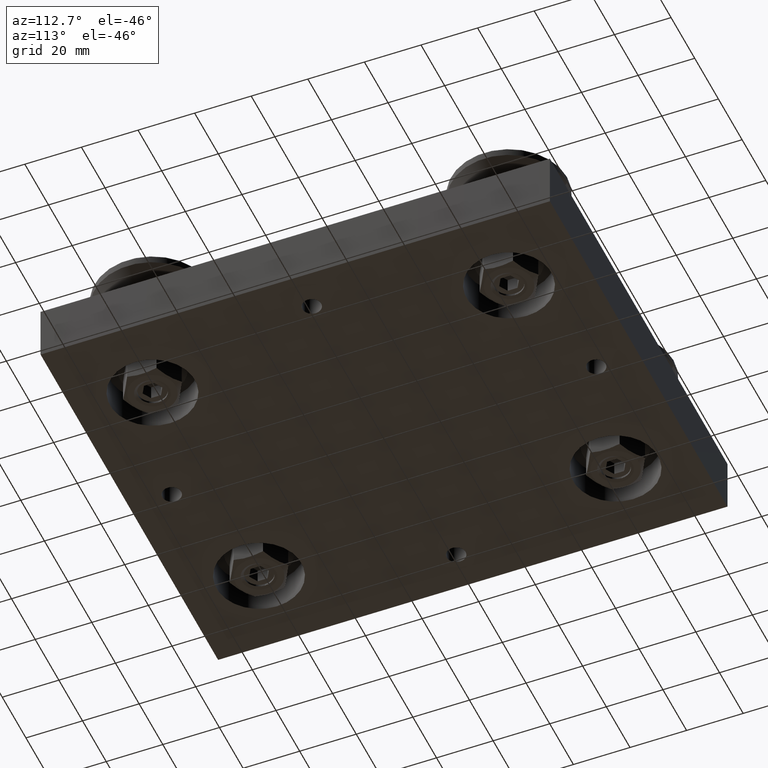
[diagram: clean part render]
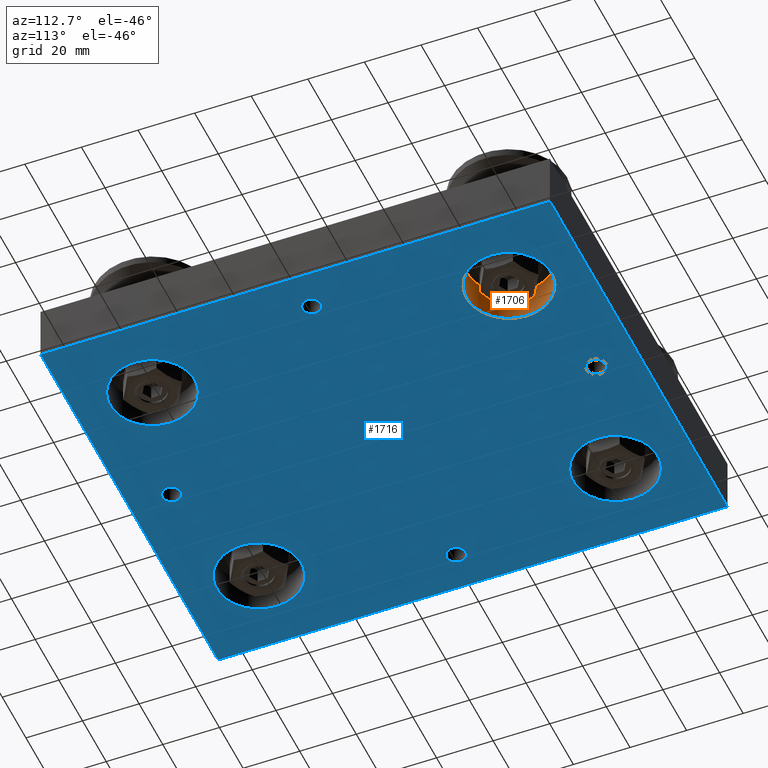
[diagram: same view with the hole feature highlighted: cylindrical wall and planar end face, labeled with their STEP entity ids]
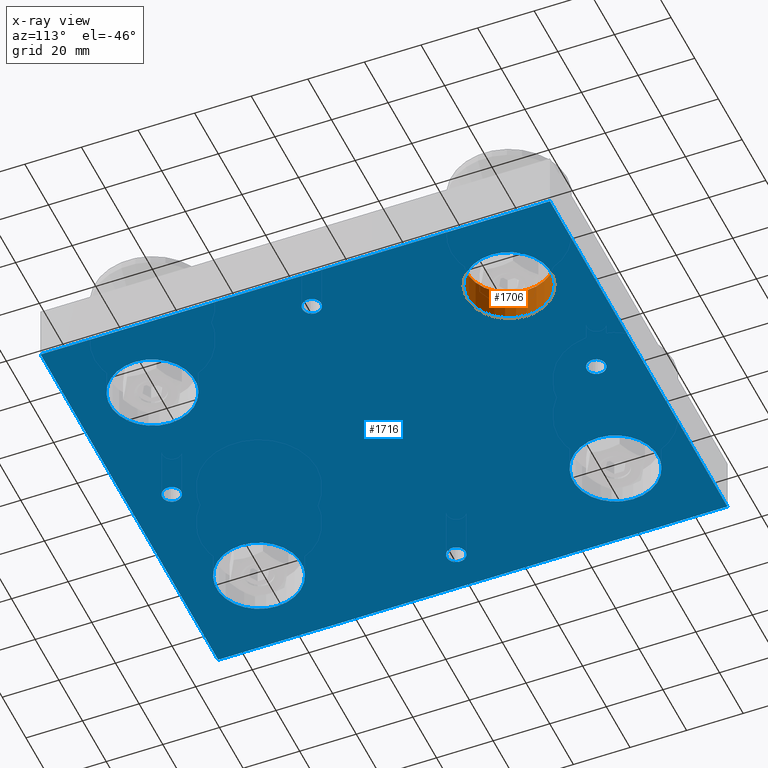
[diagram: x-ray of the same camera — body ghosted, the hole faces saturated]
A machine part, auxiliary view. The highlighted faces form one hole feature of diameter 30 mm: the cylindrical wall (entity #1706, orange) and its adjacent planar end face (entity #1716, blue) — they share a circular edge in the B-rep.
The next image is the same camera in x-ray (body ghosted, the hole faces saturated) — the bore reads through the body.
Wall:
#286=FACE_OUTER_BOUND('',#393,.T.);
#393=EDGE_LOOP('',(#1264,#1265,#1266,#1267));
#528=LINE('',#2790,#657);
#657=VECTOR('',#2267,15.);
#794=CIRCLE('',#2018,15.);
#796=CIRCLE('',#2021,15.);
#875=VERTEX_POINT('',#2783);
#877=VERTEX_POINT('',#2788);
#1028=EDGE_CURVE('',#875,#875,#794,.T.);
#1030=EDGE_CURVE('',#877,#877,#796,.T.);
#1031=EDGE_CURVE('',#877,#875,#528,.T.);
#1264=ORIENTED_EDGE('',*,*,#1030,.F.);
#1265=ORIENTED_EDGE('',*,*,#1031,.T.);
#1266=ORIENTED_EDGE('',*,*,#1028,.F.);
#1267=ORIENTED_EDGE('',*,*,#1031,.F.);
#1678=CYLINDRICAL_SURFACE('',#2020,15.);
#1706=ADVANCED_FACE('',(#286),#1678,.F.);
#2018=AXIS2_PLACEMENT_3D('',#2784,#2259,#2260);
#2020=AXIS2_PLACEMENT_3D('',#2787,#2263,#2264);
#2021=AXIS2_PLACEMENT_3D('',#2789,#2265,#2266);
#2259=DIRECTION('center_axis',(0.,0.,1.));
#2260=DIRECTION('ref_axis',(1.,0.,0.));
#2263=DIRECTION('center_axis',(0.,0.,1.));
#2264=DIRECTION('ref_axis',(1.,0.,0.));
#2265=DIRECTION('center_axis',(0.,0.,-1.));
#2266=DIRECTION('ref_axis',(1.,0.,0.));
#2267=DIRECTION('',(0.,0.,-1.));
#2783=CARTESIAN_POINT('',(-60.,63.,-2.));
#2784=CARTESIAN_POINT('Origin',(-45.,63.,-2.));
#2787=CARTESIAN_POINT('Origin',(-45.,63.,4.));
#2788=CARTESIAN_POINT('',(-60.,63.,10.));
#2789=CARTESIAN_POINT('Origin',(-45.,63.,10.));
#2790=CARTESIAN_POINT('',(-60.,63.,4.));
End face:
#189=FACE_BOUND('',#413,.T.);
#190=FACE_BOUND('',#414,.T.);
#191=FACE_BOUND('',#415,.T.);
#192=FACE_BOUND('',#416,.T.);
#193=FACE_BOUND('',#417,.T.);
#194=FACE_BOUND('',#418,.T.);
#195=FACE_BOUND('',#419,.T.);
#196=FACE_BOUND('',#420,.T.);
#223=PLANE('',#2036);
#296=FACE_OUTER_BOUND('',#412,.T.);
#412=EDGE_LOOP('',(#1310,#1311,#1312,#1313));
#413=EDGE_LOOP('',(#1314));
#414=EDGE_LOOP('',(#1315));
#415=EDGE_LOOP('',(#1316));
#416=EDGE_LOOP('',(#1317));
#417=EDGE_LOOP('',(#1318));
#418=EDGE_LOOP('',(#1319));
#419=EDGE_LOOP('',(#1320));
#420=EDGE_LOOP('',(#1321));
#537=LINE('',#2821,#666);
#539=LINE('',#2825,#668);
#541=LINE('',#2829,#670);
#543=LINE('',#2832,#672);
#666=VECTOR('',#2298,10.);
#668=VECTOR('',#2302,10.);
#670=VECTOR('',#2306,10.);
#672=VECTOR('',#2310,10.);
#778=CIRCLE('',#1992,3.3235);
#780=CIRCLE('',#1995,3.3235);
#782=CIRCLE('',#1998,3.3235);
#784=CIRCLE('',#2001,3.3235);
#788=CIRCLE('',#2007,15.);
#792=CIRCLE('',#2014,15.);
#796=CIRCLE('',#2021,15.);
#800=CIRCLE('',#2028,15.);
#859=VERTEX_POINT('',#2733);
#861=VERTEX_POINT('',#2739);
#863=VERTEX_POINT('',#2745);
#865=VERTEX_POINT('',#2751);
#869=VERTEX_POINT('',#2762);
#873=VERTEX_POINT('',#2775);
#877=VERTEX_POINT('',#2788);
#881=VERTEX_POINT('',#2801);
#887=VERTEX_POINT('',#2818);
#888=VERTEX_POINT('',#2820);
#889=VERTEX_POINT('',#2824);
#890=VERTEX_POINT('',#2828);
#1004=EDGE_CURVE('',#859,#859,#778,.T.);
#1007=EDGE_CURVE('',#861,#861,#780,.T.);
#1010=EDGE_CURVE('',#863,#863,#782,.T.);
#1013=EDGE_CURVE('',#865,#865,#784,.T.);
#1018=EDGE_CURVE('',#869,#869,#788,.T.);
#1024=EDGE_CURVE('',#873,#873,#792,.T.);
#1030=EDGE_CURVE('',#877,#877,#796,.T.);
#1036=EDGE_CURVE('',#881,#881,#800,.T.);
#1045=EDGE_CURVE('',#888,#887,#537,.T.);
#1047=EDGE_CURVE('',#889,#888,#539,.T.);
#1049=EDGE_CURVE('',#890,#889,#541,.T.);
#1051=EDGE_CURVE('',#887,#890,#543,.T.);
#1310=ORIENTED_EDGE('',*,*,#1051,.T.);
#1311=ORIENTED_EDGE('',*,*,#1049,.T.);
#1312=ORIENTED_EDGE('',*,*,#1047,.T.);
#1313=ORIENTED_EDGE('',*,*,#1045,.T.);
#1314=ORIENTED_EDGE('',*,*,#1004,.T.);
#1315=ORIENTED_EDGE('',*,*,#1007,.T.);
#1316=ORIENTED_EDGE('',*,*,#1010,.T.);
#1317=ORIENTED_EDGE('',*,*,#1013,.T.);
#1318=ORIENTED_EDGE('',*,*,#1018,.T.);
#1319=ORIENTED_EDGE('',*,*,#1024,.T.);
#1320=ORIENTED_EDGE('',*,*,#1030,.T.);
#1321=ORIENTED_EDGE('',*,*,#1036,.T.);
#1716=ADVANCED_FACE('',(#296,#189,#190,#191,#192,#193,#194,#195,#196),#223,
 .T.);
#1992=AXIS2_PLACEMENT_3D('',#2734,#2199,#2200);
#1995=AXIS2_PLACEMENT_3D('',#2740,#2206,#2207);
#1998=AXIS2_PLACEMENT_3D('',#2746,#2213,#2214);
#2001=AXIS2_PLACEMENT_3D('',#2752,#2220,#2221);
#2007=AXIS2_PLACEMENT_3D('',#2763,#2233,#2234);
#2014=AXIS2_PLACEMENT_3D('',#2776,#2249,#2250);
#2021=AXIS2_PLACEMENT_3D('',#2789,#2265,#2266);
#2028=AXIS2_PLACEMENT_3D('',#2802,#2281,#2282);
#2036=AXIS2_PLACEMENT_3D('',#2833,#2311,#2312);
#2199=DIRECTION('center_axis',(0.,0.,-1.));
#2200=DIRECTION('ref_axis',(1.,0.,0.));
#2206=DIRECTION('center_axis',(0.,0.,-1.));
#2207=DIRECTION('ref_axis',(1.,0.,0.));
#2213=DIRECTION('center_axis',(0.,0.,-1.));
#2214=DIRECTION('ref_axis',(1.,0.,0.));
#2220=DIRECTION('center_axis',(0.,0.,-1.));
#2221=DIRECTION('ref_axis',(1.,0.,0.));
#2233=DIRECTION('center_axis',(0.,0.,-1.));
#2234=DIRECTION('ref_axis',(1.,0.,0.));
#2249=DIRECTION('center_axis',(0.,0.,-1.));
#2250=DIRECTION('ref_axis',(1.,0.,0.));
#2265=DIRECTION('center_axis',(0.,0.,-1.));
#2266=DIRECTION('ref_axis',(1.,0.,0.));
#2281=DIRECTION('center_axis',(0.,0.,-1.));
#2282=DIRECTION('ref_axis',(1.,0.,0.));
#2298=DIRECTION('',(0.,-1.,0.));
#2302=DIRECTION('',(-1.,-3.5527136788005E-16,0.));
#2306=DIRECTION('',(-9.86864910777917E-17,1.,0.));
#2310=DIRECTION('',(1.,1.1842378929335E-16,0.));
#2311=DIRECTION('center_axis',(0.,0.,1.));
#2312=DIRECTION('ref_axis',(1.,0.,0.));
#2733=CARTESIAN_POINT('',(-64.3235,-4.07011363696623E-16,10.));
#2734=CARTESIAN_POINT('Origin',(-61.,0.,10.));
#2739=CARTESIAN_POINT('',(-3.3235,75.,10.));
#2740=CARTESIAN_POINT('Origin',(0.,75.,10.));
#2745=CARTESIAN_POINT('',(-3.3235,-75.,10.));
#2746=CARTESIAN_POINT('Origin',(0.,-75.,10.));
#2751=CARTESIAN_POINT('',(57.6765,-4.07011363696623E-16,10.));
#2752=CARTESIAN_POINT('Origin',(61.,0.,10.));
#2762=CARTESIAN_POINT('',(30.,-63.,10.));
#2763=CARTESIAN_POINT('Origin',(45.,-63.,10.));
#2775=CARTESIAN_POINT('',(30.,63.,10.));
#2776=CARTESIAN_POINT('Origin',(45.,63.,10.));
#2788=CARTESIAN_POINT('',(-60.,63.,10.));
#2789=CARTESIAN_POINT('Origin',(-45.,63.,10.));
#2801=CARTESIAN_POINT('',(-60.,-63.,10.));
#2802=CARTESIAN_POINT('Origin',(-45.,-63.,10.));
#2818=CARTESIAN_POINT('',(-75.,-90.,10.));
#2820=CARTESIAN_POINT('',(-75.,90.,10.));
#2821=CARTESIAN_POINT('',(-75.,-90.,10.));
#2824=CARTESIAN_POINT('',(75.,90.,10.));
#2825=CARTESIAN_POINT('',(-75.,90.,10.));
#2828=CARTESIAN_POINT('',(75.,-90.,10.));
#2829=CARTESIAN_POINT('',(75.,90.,10.));
#2832=CARTESIAN_POINT('',(75.,-90.,10.));
#2833=CARTESIAN_POINT('Origin',(8.88178419700125E-15,0.,10.));